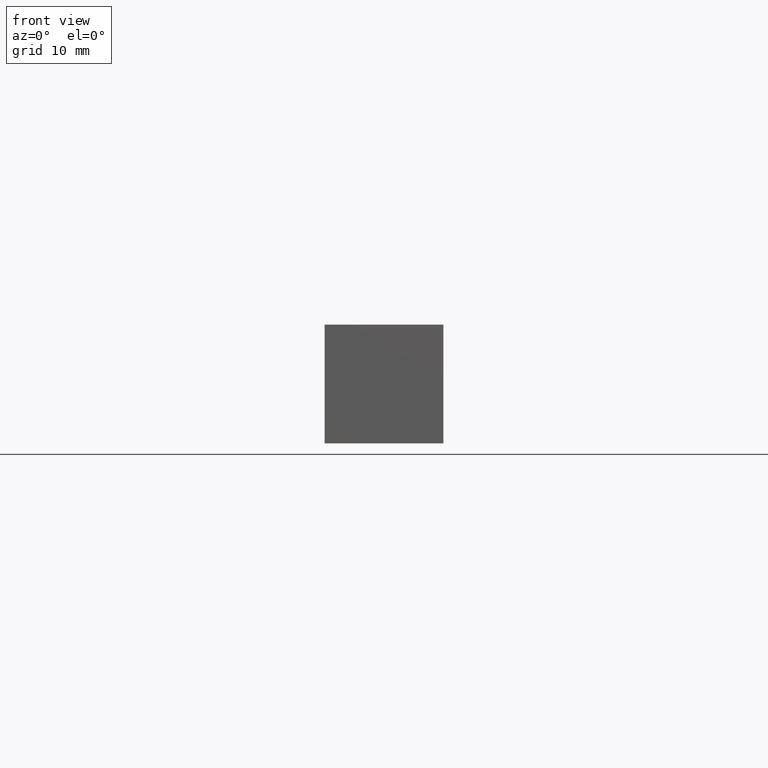
[diagram: clean part render]
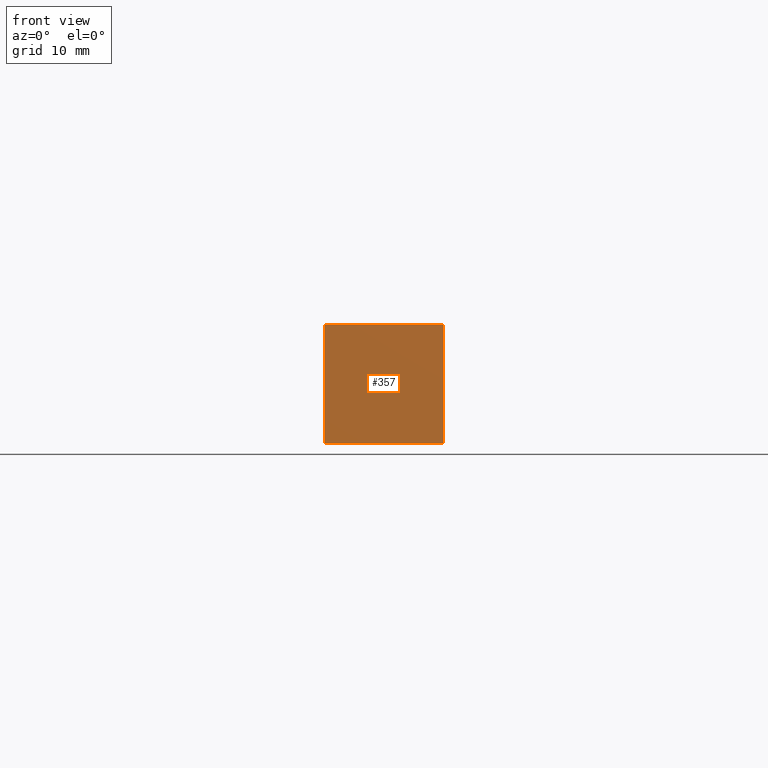
[diagram: same view with one face highlighted and labeled with its STEP entity id]
A machine part, front view. The second image highlights one B-rep face of the part: STEP entity #357.
In plain terms, the highlighted planar face has unit normal (0, 1, 0).
Its self-contained STEP definition (entity closure, byte-faithful):
#62=FACE_OUTER_BOUND('',#86,.T.);
#86=EDGE_LOOP('',(#240,#241,#242,#243));
#110=LINE('',#579,#132);
#111=LINE('',#581,#133);
#112=LINE('',#583,#134);
#113=LINE('',#584,#135);
#132=VECTOR('',#455,10.);
#133=VECTOR('',#456,10.);
#134=VECTOR('',#457,10.);
#135=VECTOR('',#458,10.);
#154=VERTEX_POINT('',#577);
#155=VERTEX_POINT('',#578);
#156=VERTEX_POINT('',#580);
#157=VERTEX_POINT('',#582);
#186=EDGE_CURVE('',#154,#155,#110,.T.);
#187=EDGE_CURVE('',#156,#155,#111,.T.);
#188=EDGE_CURVE('',#157,#156,#112,.T.);
#189=EDGE_CURVE('',#154,#157,#113,.T.);
#240=ORIENTED_EDGE('',*,*,#186,.T.);
#241=ORIENTED_EDGE('',*,*,#187,.F.);
#242=ORIENTED_EDGE('',*,*,#188,.F.);
#243=ORIENTED_EDGE('',*,*,#189,.F.);
#348=PLANE('',#401);
#357=ADVANCED_FACE('',(#62),#348,.F.);
#401=AXIS2_PLACEMENT_3D('',#576,#453,#454);
#453=DIRECTION('center_axis',(0.,1.,7.93016446160828E-16));
#454=DIRECTION('ref_axis',(0.,-7.93016446160828E-16,1.));
#455=DIRECTION('',(1.,0.,0.));
#456=DIRECTION('',(0.,7.93016446160828E-16,-1.));
#457=DIRECTION('',(1.,0.,0.));
#458=DIRECTION('',(0.,-7.93016446160828E-16,1.));
#576=CARTESIAN_POINT('Origin',(0.,-20.0000000227066,5.55111512312575E-16));
#577=CARTESIAN_POINT('',(-5.,-20.0000000227066,-5.));
#578=CARTESIAN_POINT('',(5.,-20.0000000227066,-5.));
#579=CARTESIAN_POINT('',(0.,-20.0000000227066,-5.));
#580=CARTESIAN_POINT('',(5.,-20.0000000227066,5.));
#581=CARTESIAN_POINT('',(5.,-20.0000000227066,-1.14789130626797E-14));
#582=CARTESIAN_POINT('',(-5.,-20.0000000227066,5.));
#583=CARTESIAN_POINT('',(0.,-20.0000000227066,5.));
#584=CARTESIAN_POINT('',(-5.,-20.0000000227066,-1.14789130626797E-14));